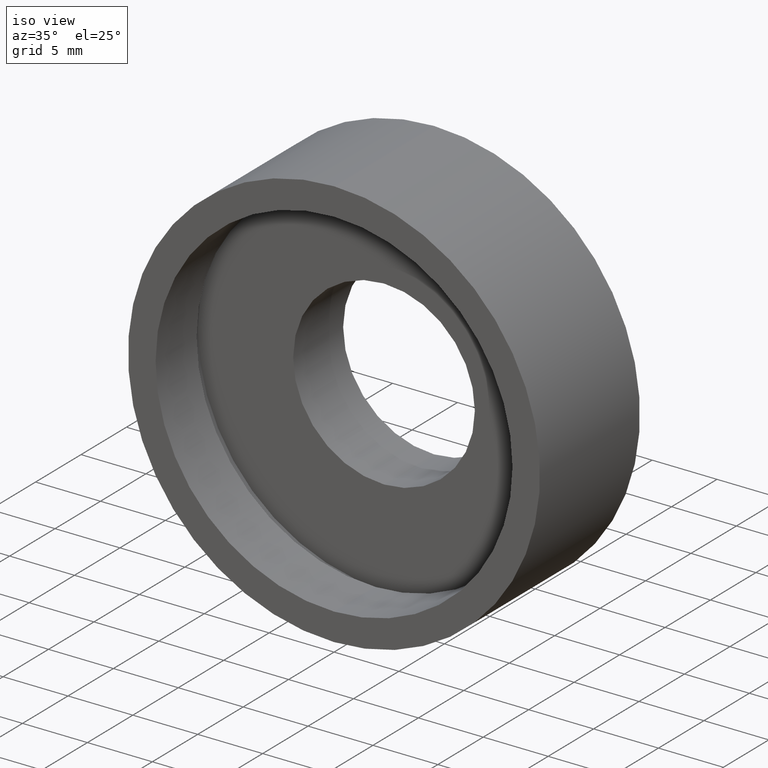
[diagram: clean part render]
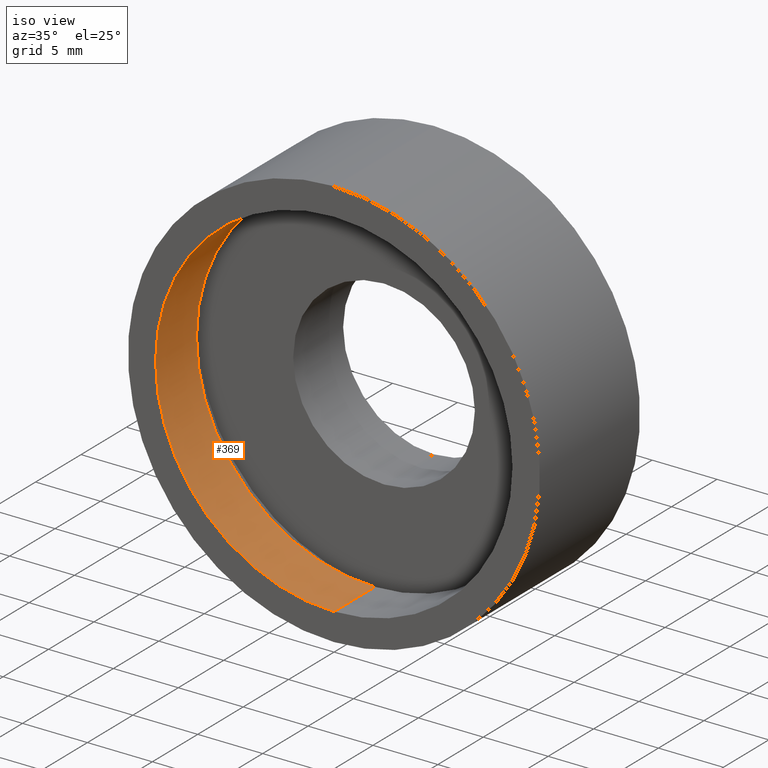
[diagram: same view with one face highlighted and labeled with its STEP entity id]
A machine part, iso view. The second image highlights one B-rep face of the part: STEP entity #369.
In plain terms, the highlighted cylindrical surface (partial cylindrical patch) has radius 13.75 mm, axis along (-0, 1, -0).
Its self-contained STEP definition (entity closure, byte-faithful):
#20 = CIRCLE ( 'NONE', #396, 13.75000000000000700 ) ;
#30 = CARTESIAN_POINT ( 'NONE',  ( 1.683889348827611600E-015, 0.0000000000000000000, -13.75000000000000700 ) ) ;
#36 = EDGE_LOOP ( 'NONE', ( #248, #93, #419, #153 ) ) ;
#57 = AXIS2_PLACEMENT_3D ( 'NONE', #226, #95, #400 ) ;
#69 = VERTEX_POINT ( 'NONE', #104 ) ;
#83 = EDGE_CURVE ( 'NONE', #349, #69, #217, .T. ) ;
#88 = CARTESIAN_POINT ( 'NONE',  ( 1.683889348827611600E-015, 4.499999999999997300, -13.75000000000000700 ) ) ;
#93 = ORIENTED_EDGE ( 'NONE', *, *, #316, .T. ) ;
#95 = DIRECTION ( 'NONE',  ( -0.0000000000000000000, 1.000000000000000000, -0.0000000000000000000 ) ) ;
#104 = CARTESIAN_POINT ( 'NONE',  ( 0.0000000000000000000, 4.499999999999997300, 13.75000000000000700 ) ) ;
#146 = EDGE_CURVE ( 'NONE', #221, #349, #20, .T. ) ;
#153 = ORIENTED_EDGE ( 'NONE', *, *, #83, .F. ) ;
#166 = DIRECTION ( 'NONE',  ( 0.0000000000000000000, 0.0000000000000000000, 1.000000000000000000 ) ) ;
#180 = DIRECTION ( 'NONE',  ( -0.0000000000000000000, 1.000000000000000000, -0.0000000000000000000 ) ) ;
#214 = CARTESIAN_POINT ( 'NONE',  ( 0.0000000000000000000, 0.0000000000000000000, 0.0000000000000000000 ) ) ;
#217 = LINE ( 'NONE', #398, #434 ) ;
#221 = VERTEX_POINT ( 'NONE', #30 ) ;
#226 = CARTESIAN_POINT ( 'NONE',  ( 0.0000000000000000000, 4.499999999999997300, 0.0000000000000000000 ) ) ;
#241 = VERTEX_POINT ( 'NONE', #88 ) ;
#248 = ORIENTED_EDGE ( 'NONE', *, *, #146, .F. ) ;
#270 = DIRECTION ( 'NONE',  ( -0.0000000000000000000, 1.000000000000000000, -0.0000000000000000000 ) ) ;
#272 = LINE ( 'NONE', #383, #308 ) ;
#283 = AXIS2_PLACEMENT_3D ( 'NONE', #328, #424, #166 ) ;
#308 = VECTOR ( 'NONE', #270, 1000.000000000000000 ) ;
#316 = EDGE_CURVE ( 'NONE', #221, #241, #272, .T. ) ;
#328 = CARTESIAN_POINT ( 'NONE',  ( 0.0000000000000000000, 60.02082041425541100, 0.0000000000000000000 ) ) ;
#332 = CARTESIAN_POINT ( 'NONE',  ( 0.0000000000000000000, 0.0000000000000000000, 13.75000000000000700 ) ) ;
#349 = VERTEX_POINT ( 'NONE', #332 ) ;
#360 = DIRECTION ( 'NONE',  ( 0.0000000000000000000, 0.0000000000000000000, 1.000000000000000000 ) ) ;
#369 = ADVANCED_FACE ( 'NONE', ( #407 ), #425, .F. ) ;
#383 = CARTESIAN_POINT ( 'NONE',  ( 1.683889348827611600E-015, 60.02082041425541100, -13.75000000000000700 ) ) ;
#396 = AXIS2_PLACEMENT_3D ( 'NONE', #214, #180, #360 ) ;
#398 = CARTESIAN_POINT ( 'NONE',  ( 0.0000000000000000000, 60.02082041425541100, 13.75000000000000700 ) ) ;
#400 = DIRECTION ( 'NONE',  ( 0.0000000000000000000, 0.0000000000000000000, 1.000000000000000000 ) ) ;
#401 = CIRCLE ( 'NONE', #57, 13.75000000000000700 ) ;
#407 = FACE_OUTER_BOUND ( 'NONE', #36, .T. ) ;
#417 = DIRECTION ( 'NONE',  ( -0.0000000000000000000, 1.000000000000000000, -0.0000000000000000000 ) ) ;
#419 = ORIENTED_EDGE ( 'NONE', *, *, #423, .T. ) ;
#423 = EDGE_CURVE ( 'NONE', #241, #69, #401, .T. ) ;
#424 = DIRECTION ( 'NONE',  ( -0.0000000000000000000, 1.000000000000000000, -0.0000000000000000000 ) ) ;
#425 = CYLINDRICAL_SURFACE ( 'NONE', #283, 13.75000000000000700 ) ;
#434 = VECTOR ( 'NONE', #417, 1000.000000000000000 ) ;